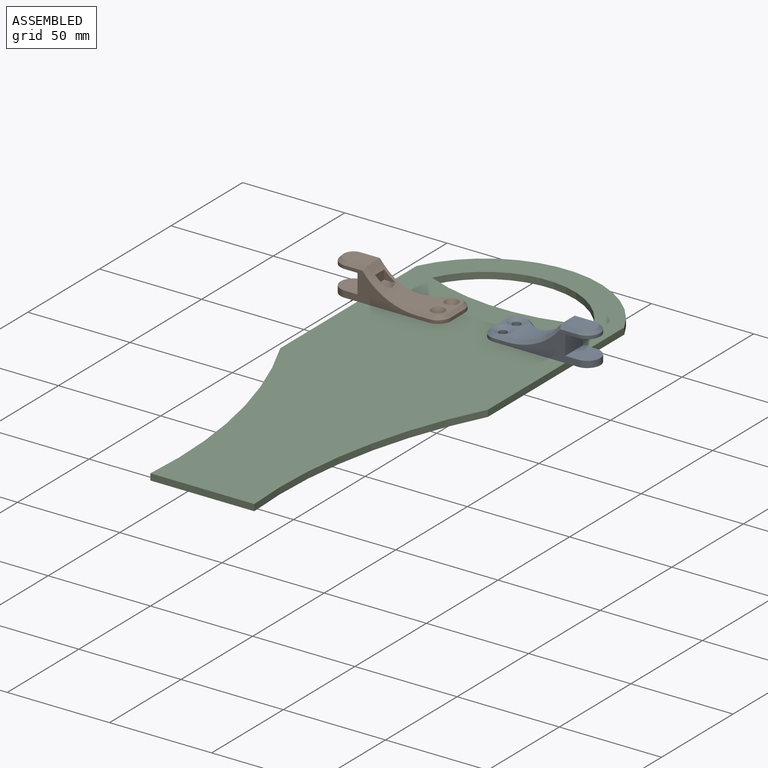
[diagram: assembled view]
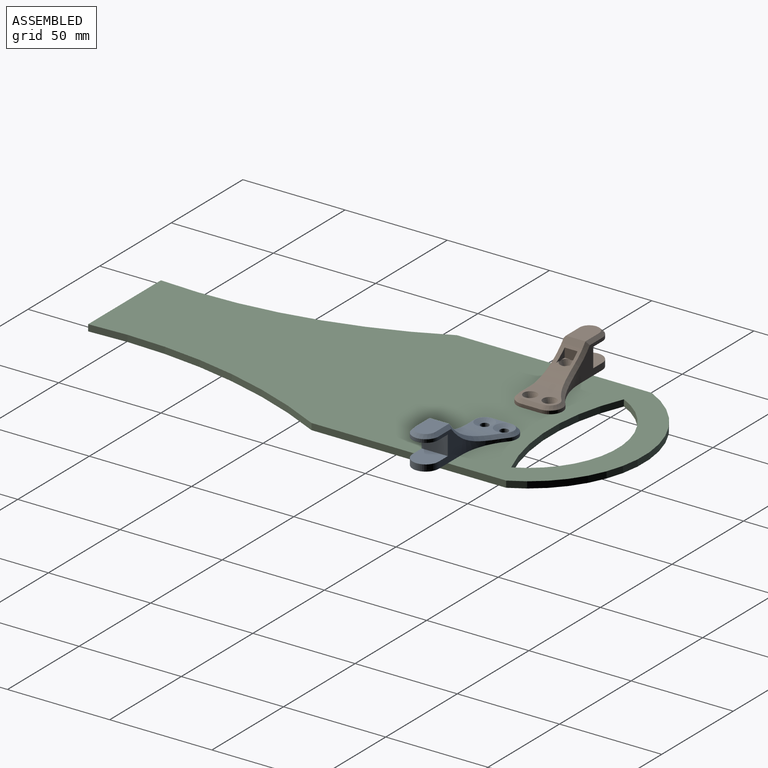
[diagram: assembled view, second angle]
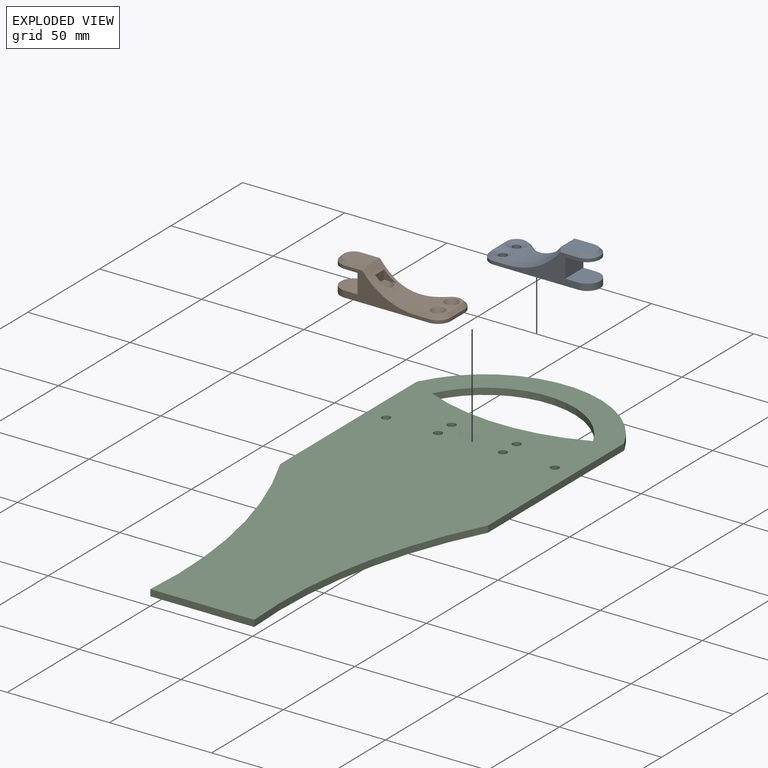
[diagram: exploded view]
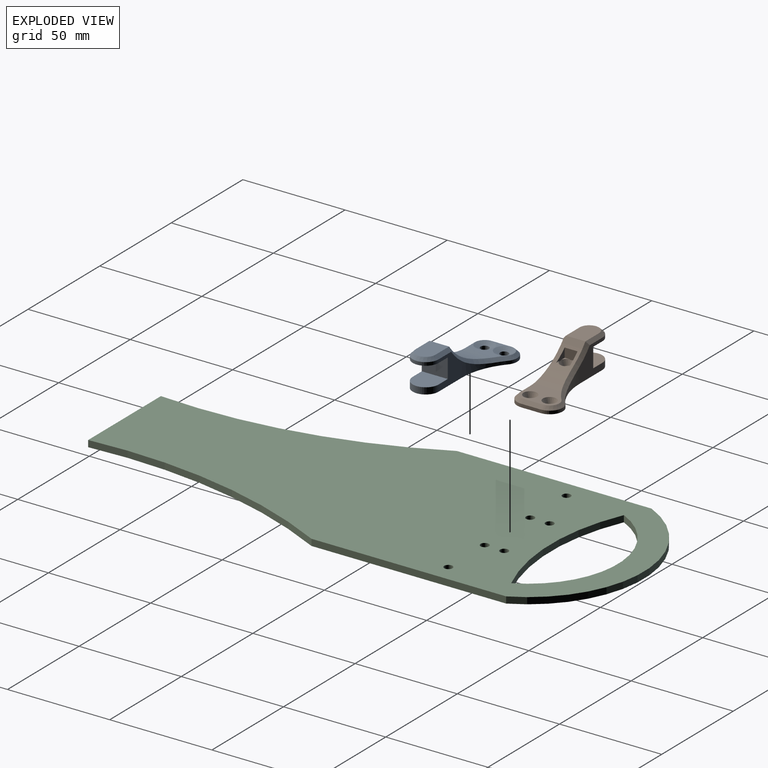
[diagram: exploded view, second angle]
ASSEMBLY  parts=3 mates=2
PART A: 39 faces, bbox 54.5x22.7x16.4 mm
  f0: plane 1.78x1.21mm, normal (0,0,1), area 0.8mm2, adj f3,f32,f38
  f1: plane 1.78x1.21mm, normal (0,0,1), area 0.8mm2, adj f3,f34,f38
  f2: plane 2.32x2.32mm, normal (0,0,1), area 1.7mm2, adj f33,f34,f38
  f3: cylinder r=31.75mm len=25.4mm, axis (0,-1,0), area 266.8mm2, adj f0,f1,f12,f15,f24,f29,f31,f32
  f4: cylinder r=2.02mm len=5.21mm, axis (0,0,-1), area 66.1mm2, adj f14,f38
  f5: plane 9.53x1.59mm, normal (-1,0,0), area 15.1mm2, adj f6,f11,f14,f23
  f6: cylinder r=6.35mm len=6.35mm, axis (0,0,-1), area 15.8mm2, adj f5,f7,f14,f21
  f7: plane 41.28x14.29mm, normal (0,-1,0), area 216.8mm2, adj f6,f8,f13,f14,f16,f17,f18,f22
  f8: cylinder r=6.35mm len=12.7mm, axis (0,0,-1), area 63.3mm2, adj f7,f9,f14,f18
  f9: plane 15.88x14.29mm, normal (0,1,0), area 140mm2, adj f8,f10,f13,f14,f16,f17,f18,f30
  f10: cylinder r=32.28mm len=21.22mm, axis (0,0,-1), area 72.1mm2, adj f9,f11,f14,f27,f29
  f11: cylinder r=6.35mm len=10.53mm, axis (0,0,-1), area 23.1mm2, adj f5,f10,f14,f25
  f12: plane 14.29x9.53mm, normal (0,0,1), area 126.4mm2, adj f3,f26,f28,f30
  f13: cylinder r=6.35mm len=12.7mm, axis (0,0,-1), area 31.7mm2, adj f7,f9,f16,f28
  f14: plane 53.98x22.23mm, normal (0,0,-1), area 763.8mm2, adj f4,f5,f6,f7,f8,f9,f10,f11
  f15: plane 19.05x11.11mm, normal (0,0,1), area 62.2mm2, adj f3,f21,f22,f23,f25,f27,f36,f37
  f16: plane 12.7x12.7mm, normal (0,0,-1), area 144mm2, adj f7,f9,f13,f17
  f17: plane 12.7x9.53mm, normal (1,0,0), area 121mm2, adj f7,f9,f16,f18
  f18: plane 12.7x12.7mm, normal (0,0,1), area 144mm2, adj f7,f8,f9,f17
  f19: cylinder r=2.02mm len=4.04mm, axis (0,0,-1), area 24.2mm2, adj f14,f36
  f20: cylinder r=2.02mm len=4.04mm, axis (0,0,-1), area 24.2mm2, adj f14,f37
  f21: cone r=6.35mm half-angle=45deg, axis (0,0,-1), area 19.6mm2, adj f6,f15,f22,f23
  f22: plane 6.35x1.59mm, normal (0,-0.71,0.71), area 14.3mm2, adj f7,f15,f21,f24
  f23: plane 9.53x1.59mm, normal (-0.71,0,0.71), area 21.4mm2, adj f5,f15,f21,f25
  f24: cone r=33.34mm half-angle=45deg, axis (0,-1,0), area 66.9mm2, adj f3,f7,f22,f26
  f25: cone r=6.35mm half-angle=45deg, axis (0,0,-1), area 28.5mm2, adj f11,f15,f23,f27
  f26: plane 9.54x1.6mm, normal (0,-0.71,0.71), area 20.5mm2, adj f7,f12,f24,f28
  f27: cone r=33.87mm half-angle=45deg, axis (0,0,1), area 8.9mm2, adj f10,f15,f25,f29
  f28: cone r=6.35mm half-angle=45deg, axis (0,0,-1), area 39.2mm2, adj f12,f13,f26,f30
  f29: bspline ~19.05x7.28mm, area 47.3mm2, adj f3,f10,f27,f31
  f30: plane 9.54x1.6mm, normal (0,0.71,0.71), area 20.5mm2, adj f9,f12,f28,f31
  f31: cone r=33.34mm half-angle=45deg, axis (0,1,0), area 22.4mm2, adj f3,f9,f29,f30
  f32: plane 6.32x5.24mm, normal (0,1,0), area 12.3mm2, adj f0,f3,f33,f35,f38
  f33: plane 6.48x4.86mm, normal (-1,0,0), area 28.9mm2, adj f2,f3,f32,f34,f35,f38
  f34: plane 6.32x5.24mm, normal (0,-1,0), area 12.3mm2, adj f1,f2,f3,f33,f38
  f35: plane 2.32x2.32mm, normal (0,0,1), area 1.7mm2, adj f32,f33,f38
  f36: cone r=4.56mm half-angle=63.4deg, axis (0,0,1), area 58.7mm2, adj f15,f19
  f37: cone r=4.56mm half-angle=63.4deg, axis (0,0,1), area 58.7mm2, adj f15,f20
  f38: cone r=2.02mm half-angle=26.6deg, axis (0,0,1), area 47.1mm2, adj f0,f1,f2,f3,f4,f32,f33,f34
PART B: 39 faces, bbox 54.5x22.7x16.4 mm
  f0: plane 2.32x2.32mm, normal (0,0,1), area 1.7mm2, adj f32,f34,f38
  f1: plane 2.32x2.32mm, normal (0,0,1), area 1.7mm2, adj f33,f34,f38
  f2: plane 1.78x1.21mm, normal (0,0,1), area 0.8mm2, adj f3,f33,f38
  f3: cylinder r=31.75mm len=25.4mm, axis (0,-1,0), area 267.2mm2, adj f2,f13,f15,f23,f30,f31,f32,f33
  f4: cylinder r=2.02mm len=5.21mm, axis (0,0,-1), area 66.1mm2, adj f14,f38
  f5: plane 9.53x1.59mm, normal (1,0,0), area 15.1mm2, adj f9,f12,f14,f24
  f6: plane 15.88x14.29mm, normal (0,1,0), area 140mm2, adj f7,f10,f11,f14,f16,f17,f18,f29
  f7: cylinder r=6.35mm len=12.7mm, axis (0,0,-1), area 31.7mm2, adj f6,f8,f16,f27
  f8: plane 41.28x14.29mm, normal (0,-1,0), area 216.8mm2, adj f7,f11,f12,f14,f16,f17,f18,f21
  f9: cylinder r=6.35mm len=10.53mm, axis (0,0,-1), area 23.1mm2, adj f5,f10,f14,f26
  f10: cylinder r=32.28mm len=21.22mm, axis (0,0,-1), area 72.1mm2, adj f6,f9,f14,f28,f30
  f11: cylinder r=6.35mm len=12.7mm, axis (0,0,-1), area 63.3mm2, adj f6,f8,f14,f17
  f12: cylinder r=6.35mm len=6.35mm, axis (0,0,-1), area 15.8mm2, adj f5,f8,f14,f22
  f13: plane 14.29x9.53mm, normal (0,0,1), area 126.4mm2, adj f3,f25,f27,f29
  f14: plane 53.98x22.23mm, normal (0,0,-1), area 763.8mm2, adj f4,f5,f6,f8,f9,f10,f11,f12
  f15: plane 19.05x11.11mm, normal (0,0,1), area 124.9mm2, adj f3,f21,f22,f24,f26,f28,f36,f37
  f16: plane 12.7x12.7mm, normal (0,0,-1), area 144mm2, adj f6,f7,f8,f18
  f17: plane 12.7x12.7mm, normal (0,0,1), area 144mm2, adj f6,f8,f11,f18
  f18: plane 12.7x9.53mm, normal (-1,0,0), area 121mm2, adj f6,f8,f16,f17
  f19: cylinder r=2.02mm len=4.04mm, axis (0,0,-1), area 8.1mm2, adj f14,f36
  f20: cylinder r=2.02mm len=4.04mm, axis (0,0,-1), area 8.1mm2, adj f14,f37
  f21: plane 6.35x1.59mm, normal (0,-0.71,0.71), area 14.3mm2, adj f8,f15,f22,f23
  f22: cone r=6.35mm half-angle=45deg, axis (0,0,-1), area 19.6mm2, adj f12,f15,f21,f24
  f23: cone r=31.75mm half-angle=45deg, axis (0,-1,0), area 66.9mm2, adj f3,f8,f21,f25
  f24: plane 9.53x1.59mm, normal (0.71,0,0.71), area 21.4mm2, adj f5,f15,f22,f26
  f25: plane 9.54x1.6mm, normal (0,-0.71,0.71), area 20.5mm2, adj f8,f13,f23,f27
  f26: cone r=6.35mm half-angle=45deg, axis (0,0,-1), area 28.5mm2, adj f9,f15,f24,f28
  f27: cone r=4.76mm half-angle=45deg, axis (0,0,-1), area 39.2mm2, adj f7,f13,f25,f29
  f28: cone r=33.87mm half-angle=45deg, axis (0,0,1), area 8.9mm2, adj f10,f15,f26,f30
  f29: plane 9.54x1.6mm, normal (0,0.71,0.71), area 20.5mm2, adj f6,f13,f27,f31
  f30: bspline ~19.05x7.28mm, area 47.3mm2, adj f3,f10,f28,f31
  f31: cone r=33.34mm half-angle=45deg, axis (0,1,0), area 22.4mm2, adj f3,f6,f29,f30
  f32: plane 6.32x5.24mm, normal (0,1,0), area 12.3mm2, adj f0,f3,f34,f35,f38
  f33: plane 6.32x5.24mm, normal (0,-1,0), area 12.3mm2, adj f1,f2,f3,f34,f38
  f34: plane 6.86x5.24mm, normal (1,0,0), area 28.9mm2, adj f0,f1,f3,f32,f33,f38
  f35: plane 1.78x1.21mm, normal (0,0,1), area 0.8mm2, adj f3,f32,f38
  f36: cone r=2.02mm half-angle=26.6deg, axis (0,0,1), area 47.4mm2, adj f15,f19
  f37: cone r=2.02mm half-angle=26.6deg, axis (0,0,1), area 47.4mm2, adj f15,f20
  f38: cone r=2.02mm half-angle=26.6deg, axis (0,0,1), area 46.7mm2, adj f0,f1,f2,f3,f4,f32,f33,f34
PART C: 16 faces, bbox 101.6x254x3.2 mm
  f0: cylinder r=43.81mm len=78.77mm, axis (0,0,-1), area 310.8mm2, adj f7,f8,f9
  f1: cylinder r=56.52mm len=101.6mm, axis (0,0,-1), area 400.9mm2, adj f2,f6,f8,f9
  f2: plane 95.25x3.18mm, normal (-1,0,0), area 302.4mm2, adj f1,f3,f8,f9
  f3: cylinder r=234.95mm len=127mm, axis (0,0,-1), area 416.6mm2, adj f2,f4,f8,f9
  f4: plane 50.8x3.18mm, normal (0,-1,0), area 161.3mm2, adj f3,f5,f8,f9
  f5: cylinder r=234.95mm len=127mm, axis (0,0,-1), area 416.6mm2, adj f4,f6,f8,f9
  f6: plane 95.25x3.18mm, normal (1,0,0), area 302.4mm2, adj f1,f5,f8,f9
  f7: cylinder r=98.42mm len=78.77mm, axis (0,0,-1), area 257.3mm2, adj f0,f8,f9
  f8: plane 254x101.6mm, normal (0,0,1), area 18186.3mm2, adj f0,f1,f2,f3,f4,f5,f6,f7
  f9: plane 254x101.6mm, normal (0,0,-1), area 18186.3mm2, adj f0,f1,f2,f3,f4,f5,f6,f7
  f10: cylinder r=2.02mm len=4.04mm, axis (0,0,-1), area 40.3mm2, adj f8,f9
  f11: cylinder r=2.02mm len=4.04mm, axis (0,0,-1), area 40.3mm2, adj f8,f9
  f12: cylinder r=2.02mm len=4.04mm, axis (0,0,-1), area 40.3mm2, adj f8,f9
  f13: cylinder r=2.02mm len=4.04mm, axis (0,0,-1), area 40.3mm2, adj f8,f9
  f14: cylinder r=2.02mm len=4.04mm, axis (0,0,-1), area 40.3mm2, adj f8,f9
  f15: cylinder r=2.02mm len=4.04mm, axis (0,0,-1), area 40.3mm2, adj f8,f9
PLACE A t=(25.4,127,0)mm
PLACE B t=(25.4,127,0)mm
PLACE C t=(25.4,127,-3.18)mm
MATE fastened A.f4 <-> C.f15  axis (0,0,-1) through (66.68,187.32,0)mm
MATE fastened B.f4 <-> C.f12  axis (0,0,-1) through (-15.88,187.32,0)mm
